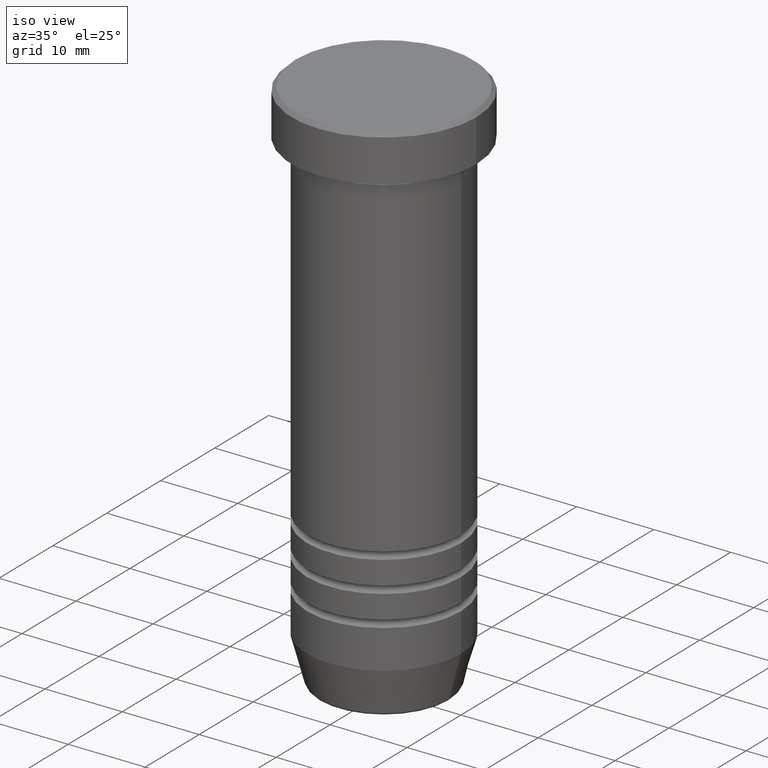
[diagram: clean part render]
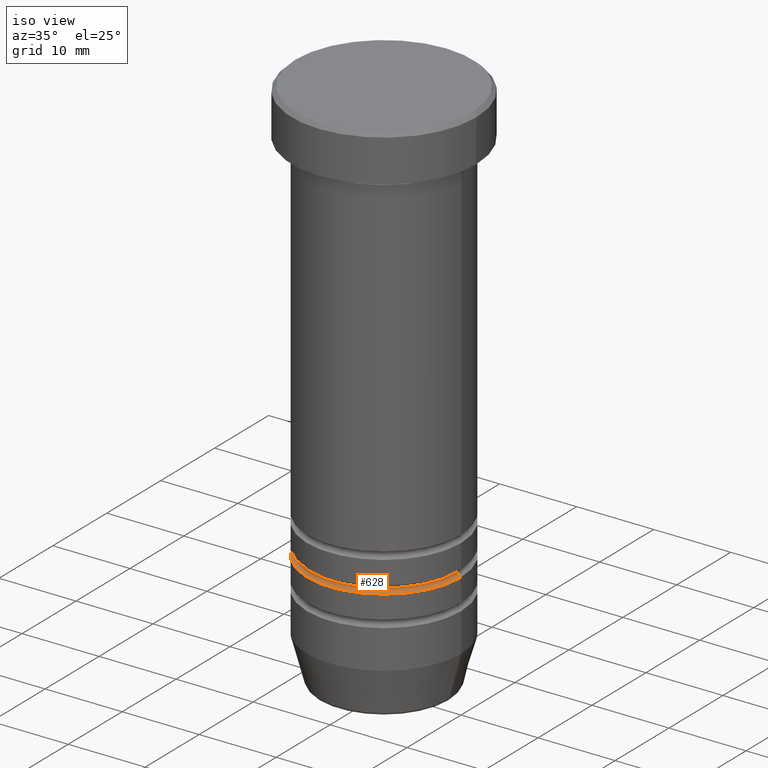
[diagram: same view with one face highlighted and labeled with its STEP entity id]
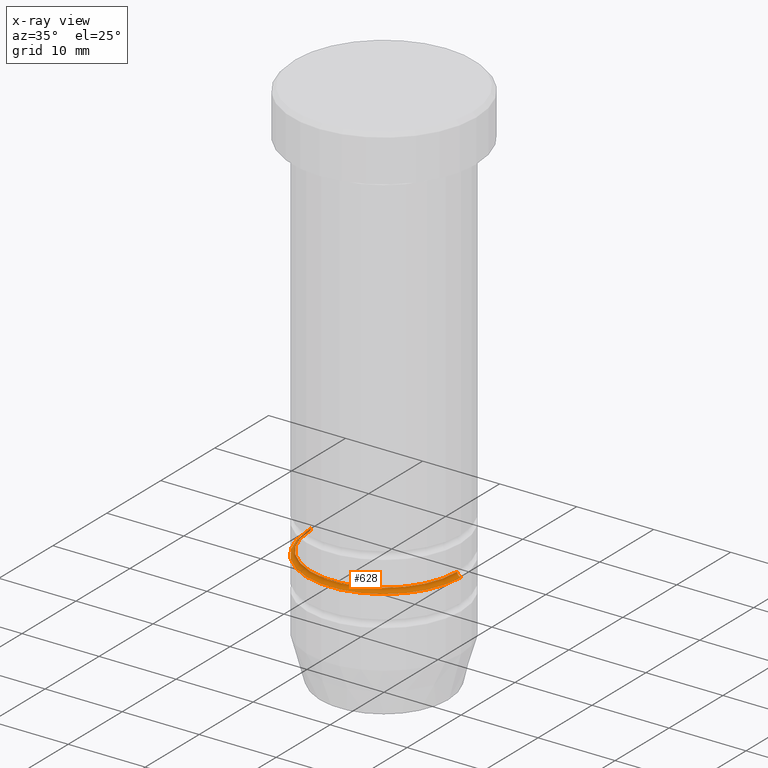
[diagram: x-ray of the same camera — body ghosted, the highlighted face saturated]
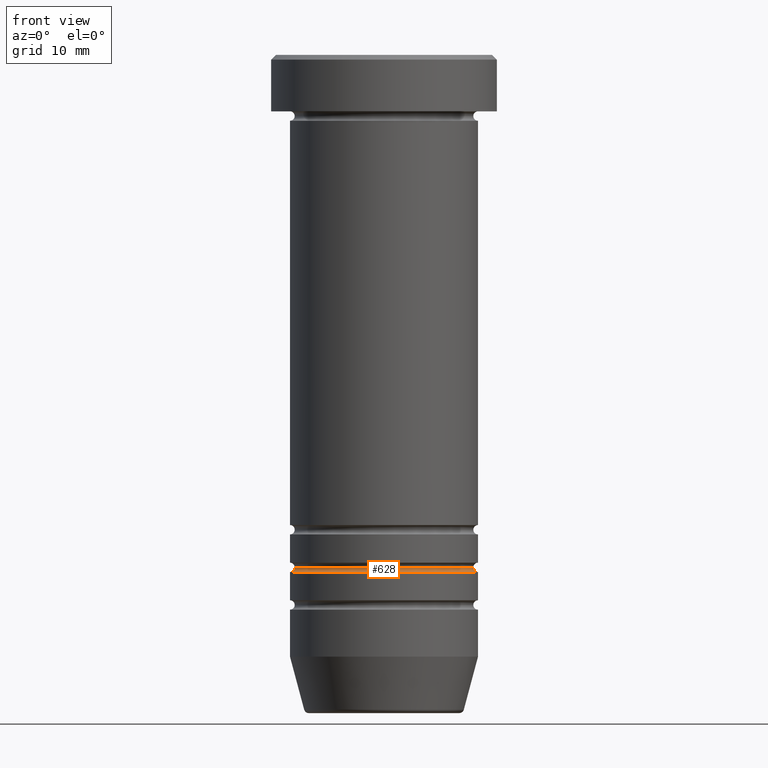
[diagram: same view with one face highlighted and labeled with its STEP entity id]
A machine part, iso view. The second image highlights one B-rep face of the part: STEP entity #628.
The next image is the same camera in x-ray: the body ghosted, the highlighted face saturated — about 2% of this face is hidden behind the body in this view.
A second angle (front view) of the same face is appended — the face is thin or edge-on in the first view.
In plain terms, the highlighted toroidal blend (fillet) surface has major radius 10 mm and minor (blend) radius 0.5 mm.
Its self-contained STEP definition (entity closure, byte-faithful):
#3 = FACE_OUTER_BOUND ( 'NONE', #55, .T. ) ;
#11 = EDGE_CURVE ( 'NONE', #326, #621, #642, .T. ) ;
#18 = AXIS2_PLACEMENT_3D ( 'NONE', #840, #31, #269 ) ;
#31 = DIRECTION ( 'NONE',  ( -1.224646799147353207E-16, 1.000000000000000000, 0.000000000000000000 ) ) ;
#47 = VERTEX_POINT ( 'NONE', #603 ) ;
#55 = EDGE_LOOP ( 'NONE', ( #266, #605, #180, #686 ) ) ;
#69 = CARTESIAN_POINT ( 'NONE',  ( -9.999999999999994671, 0.000000000000000000, -54.50000000000001421 ) ) ;
#87 = EDGE_CURVE ( 'NONE', #985, #47, #626, .T. ) ;
#100 = TOROIDAL_SURFACE ( 'NONE', #480, 9.999999999999994671, 0.5000000000000000000 ) ;
#115 = CIRCLE ( 'NONE', #529, 0.5000000000000004441 ) ;
#180 = ORIENTED_EDGE ( 'NONE', *, *, #11, .T. ) ;
#184 = CIRCLE ( 'NONE', #18, 0.5000000000000004441 ) ;
#194 = CARTESIAN_POINT ( 'NONE',  ( 0.000000000000000000, 0.000000000000000000, -55.00000000000001421 ) ) ;
#207 = CARTESIAN_POINT ( 'NONE',  ( 0.000000000000000000, 0.000000000000000000, -54.50000000000000711 ) ) ;
#259 = DIRECTION ( 'NONE',  ( -0.000000000000000000, -1.000000000000000000, -0.000000000000000000 ) ) ;
#266 = ORIENTED_EDGE ( 'NONE', *, *, #87, .T. ) ;
#269 = DIRECTION ( 'NONE',  ( -1.000000000000000000, -1.224646799147353454E-16, 0.000000000000000000 ) ) ;
#311 = CARTESIAN_POINT ( 'NONE',  ( -10.00000000000000178, 1.224646799147353454E-15, -55.00000000000001421 ) ) ;
#326 = VERTEX_POINT ( 'NONE', #854 ) ;
#405 = AXIS2_PLACEMENT_3D ( 'NONE', #207, #684, #697 ) ;
#425 = AXIS2_PLACEMENT_3D ( 'NONE', #194, #855, #948 ) ;
#480 = AXIS2_PLACEMENT_3D ( 'NONE', #648, #1059, #827 ) ;
#529 = AXIS2_PLACEMENT_3D ( 'NONE', #69, #259, #571 ) ;
#571 = DIRECTION ( 'NONE',  ( 0.000000000000000000, 0.000000000000000000, -1.000000000000000000 ) ) ;
#603 = CARTESIAN_POINT ( 'NONE',  ( 10.00000000000000000, 0.000000000000000000, -55.00000000000001421 ) ) ;
#605 = ORIENTED_EDGE ( 'NONE', *, *, #756, .T. ) ;
#621 = VERTEX_POINT ( 'NONE', #737 ) ;
#626 = CIRCLE ( 'NONE', #425, 10.00000000000000000 ) ;
#628 = ADVANCED_FACE ( 'NONE', ( #3 ), #100, .F. ) ;
#641 = EDGE_CURVE ( 'NONE', #985, #621, #115, .T. ) ;
#642 = CIRCLE ( 'NONE', #405, 9.499999999999994671 ) ;
#648 = CARTESIAN_POINT ( 'NONE',  ( 0.000000000000000000, 0.000000000000000000, -54.50000000000001421 ) ) ;
#684 = DIRECTION ( 'NONE',  ( 0.000000000000000000, 0.000000000000000000, -1.000000000000000000 ) ) ;
#686 = ORIENTED_EDGE ( 'NONE', *, *, #641, .F. ) ;
#697 = DIRECTION ( 'NONE',  ( 1.000000000000000000, 0.000000000000000000, 0.000000000000000000 ) ) ;
#737 = CARTESIAN_POINT ( 'NONE',  ( -9.499999999999994671, 1.194030629168669075E-15, -54.50000000000000711 ) ) ;
#756 = EDGE_CURVE ( 'NONE', #47, #326, #184, .T. ) ;
#827 = DIRECTION ( 'NONE',  ( -1.000000000000000000, 0.000000000000000000, 0.000000000000000000 ) ) ;
#840 = CARTESIAN_POINT ( 'NONE',  ( 9.999999999999994671, 1.224646799147352665E-15, -54.50000000000001421 ) ) ;
#854 = CARTESIAN_POINT ( 'NONE',  ( 9.499999999999994671, 0.000000000000000000, -54.50000000000000711 ) ) ;
#855 = DIRECTION ( 'NONE',  ( -0.000000000000000000, -0.000000000000000000, 1.000000000000000000 ) ) ;
#948 = DIRECTION ( 'NONE',  ( 1.000000000000000000, 0.000000000000000000, 0.000000000000000000 ) ) ;
#985 = VERTEX_POINT ( 'NONE', #311 ) ;
#1059 = DIRECTION ( 'NONE',  ( 0.000000000000000000, 0.000000000000000000, -1.000000000000000000 ) ) ;